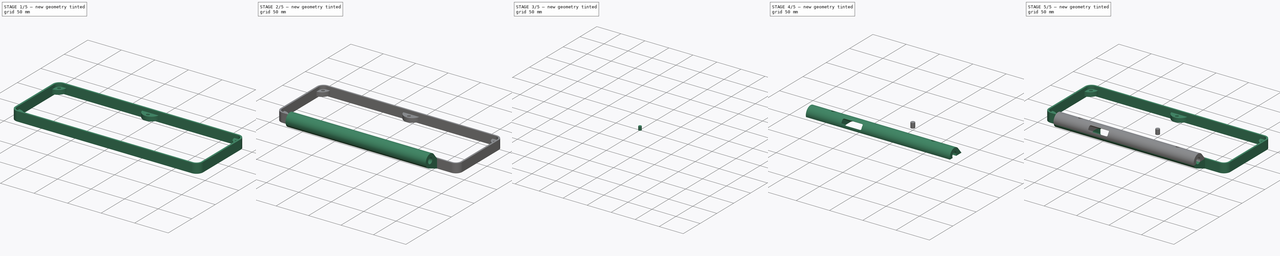
[diagram: build sequence overview — one tinted view per stage of 5, left to right]
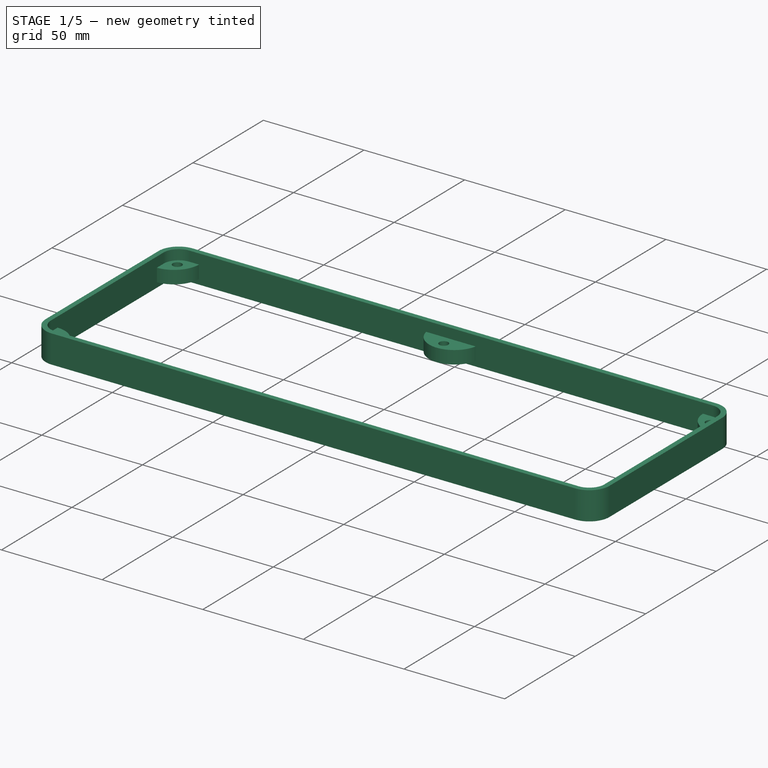
[diagram: stage 1 of 5 — iso view after this stage's code; geometry added in this stage tinted green]
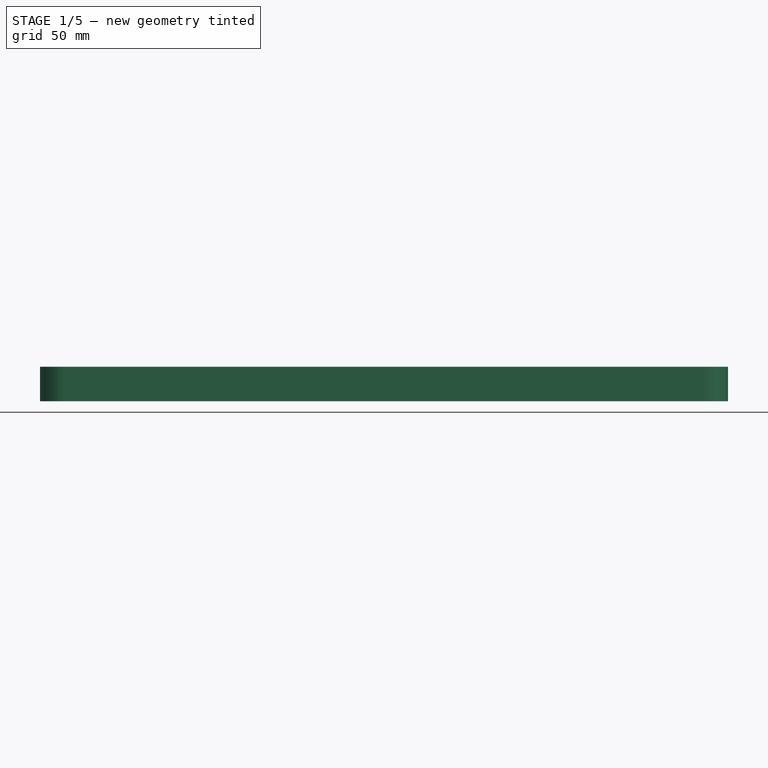
[diagram: stage 1 of 5 — front view after this stage's code; geometry added in this stage tinted green]
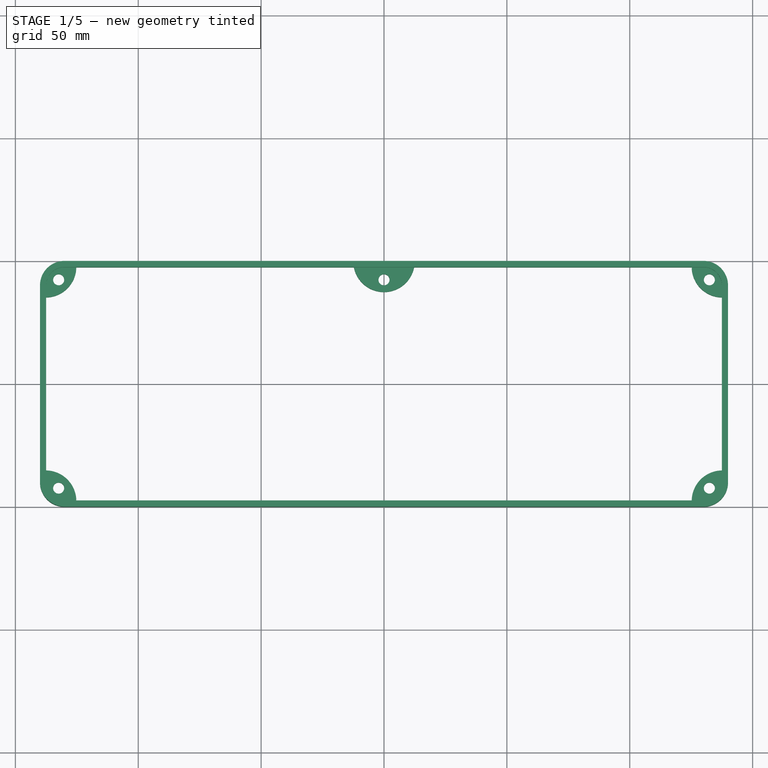
[diagram: stage 1 of 5 — top view after this stage's code; geometry added in this stage tinted green]
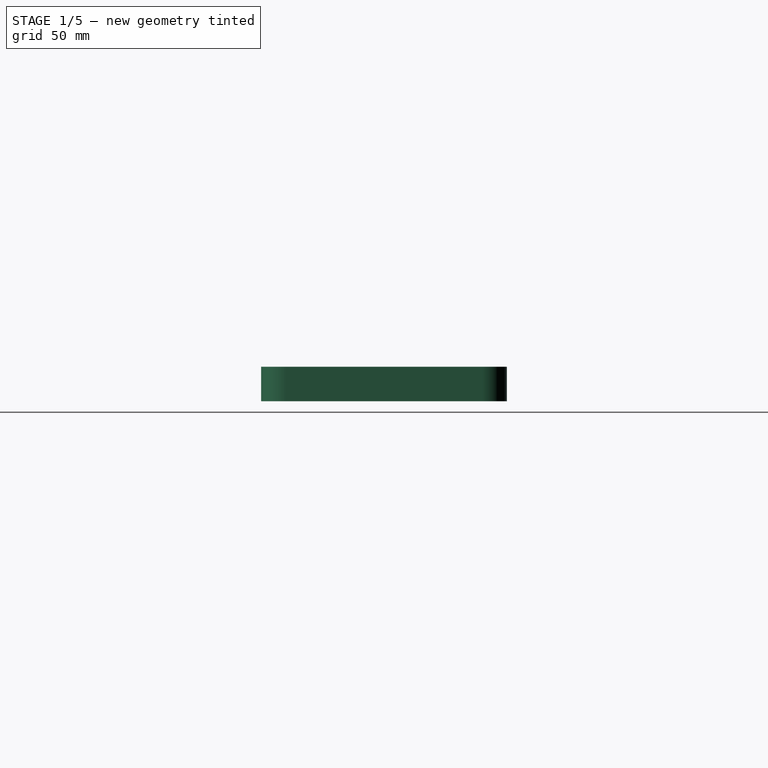
[diagram: stage 1 of 5 — right view after this stage's code; geometry added in this stage tinted green]
FCSTD DOCUMENT  (FreeCAD 1.0R39319 (Git))
Label: TopEnclosureShell
License: All rights reserved
LicenseURL: https://en.wikipedia.org/wiki/All_rights_reserved
objects: PartDesign::SubShapeBinder×20, Sketcher::SketchObject×9, PartDesign::Mirrored×8, PartDesign::Body×8, PartDesign::Pocket×6, PartDesign::Pad×5, PartDesign::Boolean×5, PartDesign::Hole×4, Part::FeaturePython×3, App::Link×2, PartDesign::MultiTransform×1, Part::Extrusion×1, App::DocumentObjectGroup×1, App::VarSet×1
note: 123 computed .brp shape members not serialized (recipe doc carries the construction recipe); baked Part::Feature solids carry a one-line shape summary decoded from their .brp
EXTERNAL_REF file=Spec.FCStd obj=Spreadsheet
EXTERNAL_REF file=TopEnclosure.FCStd obj=Sketch

FEATURE [App::Link] Link  label="Vars"
  LinkedObject = -> <external Spec.FCStd>#Spreadsheet
FEATURE [App::Link] Link001  label="MasterSketch"
  LinkedObject = -> <external TopEnclosure.FCStd>#Sketch
FEATURE [PartDesign::SubShapeBinder] Binder
  BindCopyOnChange = 0
  BindMode = 0
  ClaimChildren = false
  Context = -> Body [Binder.]
  Fuse = false
  MakeFace = true
  OffsetFill = false
  OffsetIntersection = false
  OffsetJoinType = 0
  OffsetOpenResult = false
  PartialLoad = false
  Refine = true
  Relative = true
  Support = -> [Link001[Edge17,Edge1,Edge2,Edge18,Edge3,Edge19,Edge20,Edge4]]
  _Version = 2
FEATURE [PartDesign::Pad] Pad
  Direction = (0,0,1)
  Length = 14
  Length2 = 10
  Profile = -> Binder
  Refine = true
  Suppressed = false
  Type = 0
  expr: Length = <<Vars>>.top_enclosure_depth
FEATURE [PartDesign::SubShapeBinder] Binder001
  BindCopyOnChange = 0
  BindMode = 0
  ClaimChildren = false
  Context = -> Body [Binder001.]
  Fuse = false
  MakeFace = true
  OffsetFill = false
  OffsetIntersection = false
  OffsetJoinType = 0
  OffsetOpenResult = false
  PartialLoad = false
  Refine = true
  Relative = true
  Support = -> [Link001[Edge37,Edge39]]
  _Version = 2
FEATURE [Sketcher::SketchObject] Sketch
  ArcFitTolerance = 1e-06
  AttachmentOffset = pos=(0,0,2.5) rot=(0,0,1;0rad)
  AttachmentSupport = -> [XY_Plane]
  ExternalGeometry = -> [Binder001]
  FullyConstrained = true
  MakeInternals = false
  MapMode = 5
  Placement = pos=(0,0,2.5) rot=(0,0,1;0rad)
  expr: .AttachmentOffset.Base.z = <<LocalVars>>.bottom_offset
  sketch-geometry (4):
    g0: ArcOfCircle CenterX=-137.703 CenterY=47.7033 CenterZ=0 NormalX=0 NormalY=0 NormalZ=1 AngleXU=0 Radius=12.5 StartAngle=4.72865 EndAngle=6.26692
    g1: LineSegment StartX=-137.5 StartY=35.205 StartZ=0 EndX=-137.5 EndY=41.4 EndZ=0
    g2: LineSegment StartX=-125.205 StartY=47.5 StartZ=0 EndX=-131.4 EndY=47.5 EndZ=0
    g3: ArcOfCircle CenterX=-131.4 CenterY=41.4 CenterZ=0 NormalX=0 NormalY=0 NormalZ=1 AngleXU=0 Radius=6.1 StartAngle=1.5708 EndAngle=3.14159
  constraints (10):
    c: Coincident(g0,g-4)
    c: PointOnObject(g0,g-4)
    c: Horizontal(g-3,g0)
    c: Vertical(g-3,g0)
    c: Coincident(g1,g0)
    c: Coincident(g1,g-3)
    c: Coincident(g2,g0)
    c: Coincident(g2,g-3)
    c: Coincident(g3,g1)
    c: Tangent(g3,g2) = -1.5708
FEATURE [PartDesign::SubShapeBinder] Binder002
  BindCopyOnChange = 0
  BindMode = 0
  ClaimChildren = false
  Context = -> Body [Binder002.]
  Fuse = false
  MakeFace = true
  OffsetFill = false
  OffsetIntersection = false
  OffsetJoinType = 0
  OffsetOpenResult = false
  PartialLoad = false
  Refine = true
  Relative = true
  Support = -> [Link001[Edge38,Edge40]]
  _Version = 2
FEATURE [PartDesign::Pad] Pad001
  BaseFeature = -> Pad
  Direction = (0,0,1)
  Length = 6.5
  Length2 = 10
  Profile = -> Sketch
  ReferenceAxis = -> Sketch [N_Axis]
  Refine = true
  Suppressed = false
  Type = 0
  expr: Length = <<LocalVars>>.internal_depth
FEATURE [PartDesign::SubShapeBinder] Binder003
  BindCopyOnChange = 0
  BindMode = 0
  ClaimChildren = false
  Context = -> Body [Binder003.]
  Fuse = false
  MakeFace = true
  OffsetFill = false
  OffsetIntersection = false
  OffsetJoinType = 0
  OffsetOpenResult = false
  PartialLoad = false
  Refine = true
  Relative = true
  Support = -> [Binder001[Edge2]]
  _Version = 2
FEATURE [PartDesign::Hole] Hole
  BaseFeature = -> Pad001
  CustomThreadClearance = 0
  Depth = 25
  DepthType = 0
  Diameter = 4.5
  DrillForDepth = false
  DrillPoint = 1
  DrillPointAngle = 118
  HoleCutCountersinkAngle = 90
  HoleCutCustomValues = false
  HoleCutDepth = 0
  HoleCutDiameter = 6.1
  HoleCutType = 0
  ModelThread = false
  Profile = -> Binder003
  Refine = true
  Reversed = true
  Suppressed = false
  Tapered = false
  TaperedAngle = 90
  ThreadClass = 0
  ThreadDepth = 25
  ThreadDepthType = 0
  ThreadDirection = 0
  ThreadFit = 0
  ThreadSize = 0
  ThreadType = 0
  Threaded = false
  UseCustomThreadClearance = false
  expr: Diameter = <<Vars>>.nut_inserts_m3
FEATURE [PartDesign::Mirrored] Mirrored
  MirrorPlane = -> YZ_Plane
  Refine = true
  Suppressed = false
  TransformMode = 0
FEATURE [PartDesign::Mirrored] Mirrored001
  MirrorPlane = -> XZ_Plane
  Refine = true
  Suppressed = false
  TransformMode = 0
FEATURE [PartDesign::MultiTransform] MultiTransform
  BaseFeature = -> Hole
  Originals = -> [Pad001,Hole]
  Refine = true
  Suppressed = false
  TransformMode = 0
  Transformations = -> [Mirrored,Mirrored001]
FEATURE [Sketcher::SketchObject] Sketch001
  ArcFitTolerance = 1e-06
  AttachmentOffset = pos=(0,0,2.5) rot=(0,0,1;0rad)
  AttachmentSupport = -> [XY_Plane]
  ExternalGeometry = -> [Binder002]
  FullyConstrained = true
  MakeInternals = false
  MapMode = 5
  Placement = pos=(0,0,2.5) rot=(0,0,1;0rad)
  expr: .AttachmentOffset.Base.z = <<LocalVars>>.bottom_offset
  sketch-geometry (2):
    g0: ArcOfCircle CenterX=0 CenterY=49.9 CenterZ=0 NormalX=0 NormalY=0 NormalZ=1 AngleXU=0 Radius=12.5 StartAngle=3.33479 EndAngle=6.08999
    g1: LineSegment StartX=-12.2674 StartY=47.5 StartZ=0 EndX=12.2674 EndY=47.5 EndZ=0
  constraints (6):
    c: Coincident(g0,g-3)
    c: PointOnObject(g0,g-3)
    c: Horizontal(g1)
    c: PointOnObject(g1,g-4)
    c: Coincident(g1,g0)
    c: Coincident(g1,g0)
FEATURE [PartDesign::Pad] Pad002
  BaseFeature = -> MultiTransform
  Direction = (0,0,1)
  Length = 6.5
  Length2 = 10
  Profile = -> Sketch001
  ReferenceAxis = -> Sketch001 [N_Axis]
  Refine = true
  Suppressed = false
  Type = 0
  expr: Length = <<LocalVars>>.internal_depth
FEATURE [PartDesign::SubShapeBinder] Binder004
  BindCopyOnChange = 0
  BindMode = 0
  ClaimChildren = false
  Context = -> Body [Binder004.]
  Fuse = false
  MakeFace = true
  OffsetFill = false
  OffsetIntersection = false
  OffsetJoinType = 0
  OffsetOpenResult = false
  PartialLoad = false
  Refine = true
  Relative = true
  Support = -> [Binder002[Edge2]]
  _Version = 2
FEATURE [PartDesign::Hole] Hole001
  BaseFeature = -> Pad002
  CustomThreadClearance = 0
  Depth = 25
  DepthType = 0
  Diameter = 4.5
  DrillForDepth = false
  DrillPoint = 1
  DrillPointAngle = 118
  HoleCutCountersinkAngle = 90
  HoleCutCustomValues = false
  HoleCutDepth = 0
  HoleCutDiameter = 6.1
  HoleCutType = 0
  ModelThread = false
  Profile = -> Binder004
  Refine = true
  Reversed = true
  Suppressed = false
  Tapered = false
  TaperedAngle = 90
  ThreadClass = 0
  ThreadDepth = 25
  ThreadDepthType = 0
  ThreadDirection = 0
  ThreadFit = 0
  ThreadSize = 0
  ThreadType = 0
  Threaded = false
  UseCustomThreadClearance = false
  expr: Diameter = <<Vars>>.nut_inserts_m3
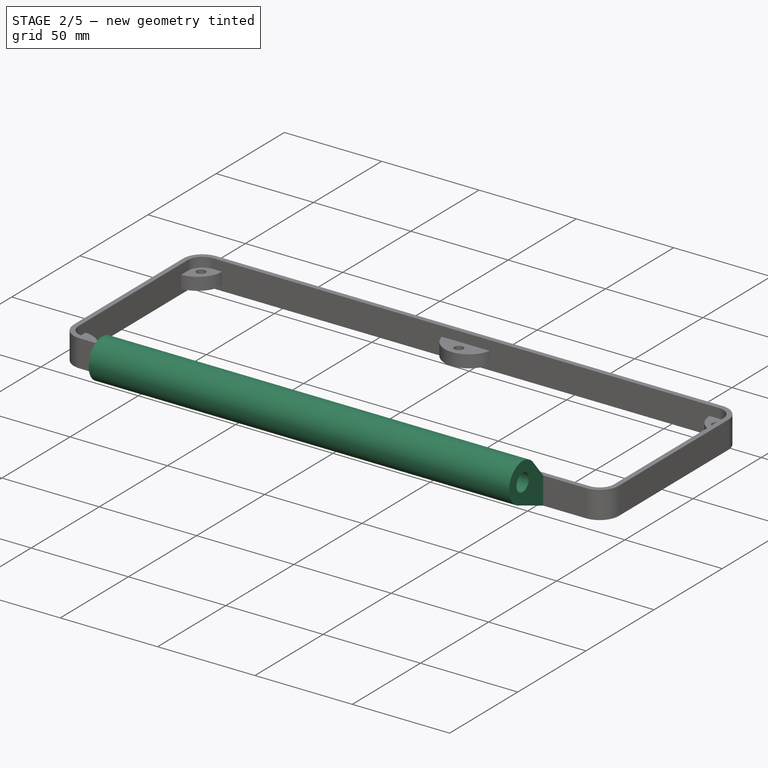
[diagram: stage 2 of 5 — iso view after this stage's code; geometry added in this stage tinted green]
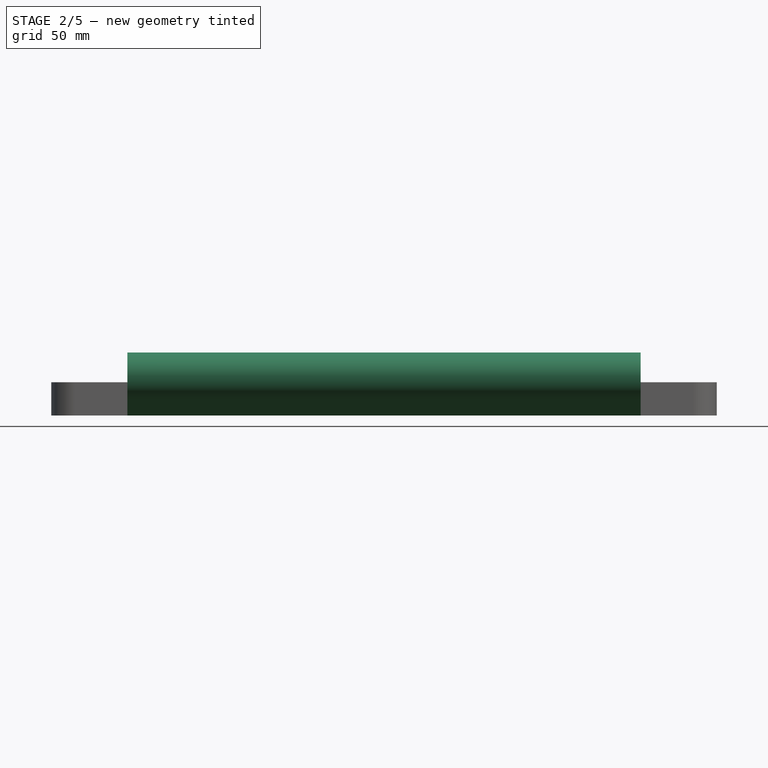
[diagram: stage 2 of 5 — front view after this stage's code; geometry added in this stage tinted green]
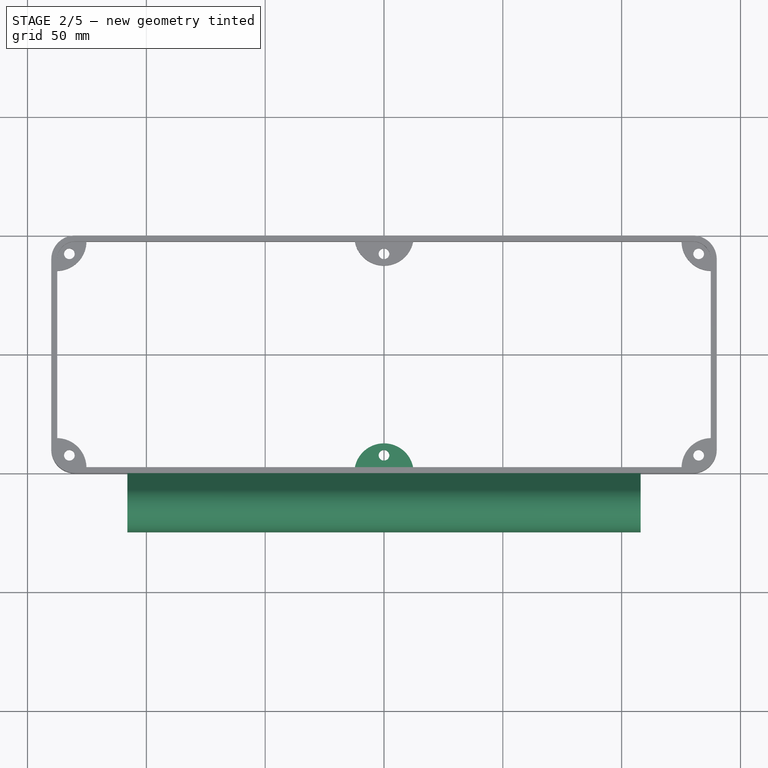
[diagram: stage 2 of 5 — top view after this stage's code; geometry added in this stage tinted green]
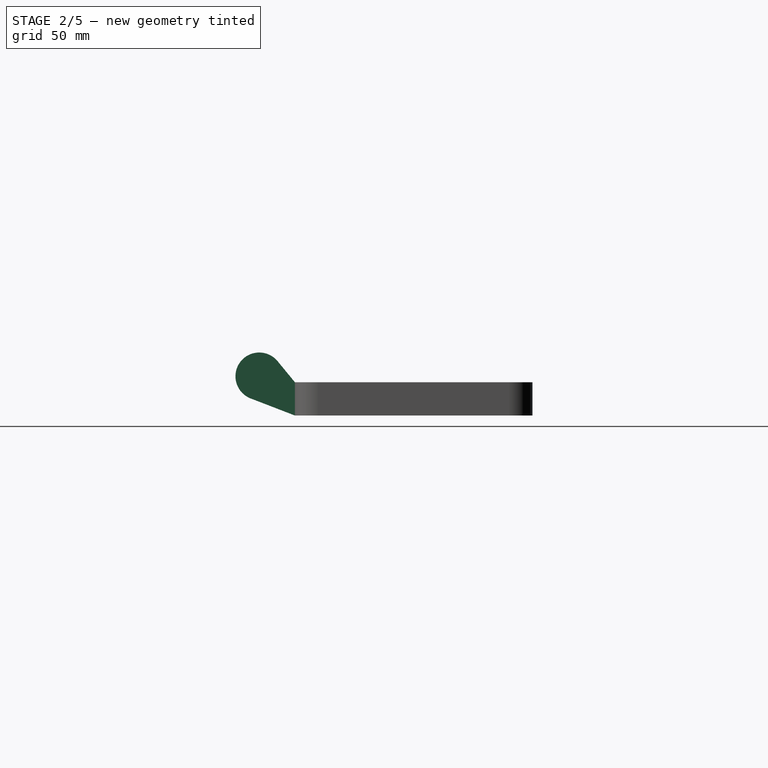
[diagram: stage 2 of 5 — right view after this stage's code; geometry added in this stage tinted green]
FEATURE [PartDesign::Mirrored] Mirrored002
  BaseFeature = -> Hole001
  MirrorPlane = -> XZ_Plane
  Originals = -> [Pad002,Hole001]
  Refine = true
  Suppressed = false
  TransformMode = 0
FEATURE [PartDesign::Body] Body  label="Top Enclosure Shell - Base"
  AllowCompound = false
  Group = -> [Binder,Pad,Sketch,Binder001,Binder002,Pad001,Binder003,Hole,MultiTransform,Mirrored,Mirrored001,Sketch001,Pad002,Binder004,Hole001,Mirrored002]
  Origin = -> Origin
  Tip = -> Mirrored002
FEATURE [PartDesign::SubShapeBinder] Binder005
  BindCopyOnChange = 0
  BindMode = 0
  ClaimChildren = false
  Context = -> Body001 [Binder005.]
  Fuse = false
  MakeFace = true
  OffsetFill = false
  OffsetIntersection = false
  OffsetJoinType = 0
  OffsetOpenResult = false
  PartialLoad = false
  Refine = true
  Relative = true
  Support = -> [Body]
  _Version = 2
FEATURE [PartDesign::Boolean] Boolean
  Group = -> [Binder005]
  Refine = true
  Suppressed = false
  Type = 0
  UsePlacement = true
FEATURE [Sketcher::SketchObject] Sketch002
  ArcFitTolerance = 1e-06
  AttachmentSupport = -> [YZ_Plane001]
  FullyConstrained = true
  MakeInternals = false
  MapMode = 5
  Placement = pos=(0,0,0) rot=(0.57735,0.57735,0.57735;2.0944rad)
  expr: Constraints[2] = <<Vars>>.top_enclosure_height / 2
  expr: Constraints[3] = <<Vars>>.top_enclosure_depth
  sketch-geometry (12):
    g0: LineSegment StartX=-50 StartY=0 StartZ=0 EndX=-50 EndY=14 EndZ=0
    g1: LineSegment StartX=-50 StartY=14 StartZ=0 EndX=-57.275 EndY=22.8501 EndZ=0
    g2: LineSegment StartX=-50 StartY=0 StartZ=0 EndX=-68.5971 EndY=7.16934 EndZ=0
    g3: Circle CenterX=-65 CenterY=16.5 CenterZ=0 NormalX=0 NormalY=0 NormalZ=1 AngleXU=0 Radius=4.5
    g4: ArcOfCircle CenterX=-65 CenterY=16.5 CenterZ=0 NormalX=0 NormalY=0 NormalZ=1 AngleXU=0 Radius=10 StartAngle=0.688024 EndAngle=4.34444
    g5: LineSegment StartX=-65 StartY=22.85 StartZ=0 EndX=-70.4993 EndY=19.675 EndZ=0
    g6: LineSegment StartX=-70.4993 StartY=19.675 StartZ=0 EndX=-70.4993 EndY=13.325 EndZ=0
    g7: LineSegment StartX=-70.4993 StartY=13.325 StartZ=0 EndX=-65 EndY=10.15 EndZ=0
    g8: LineSegment StartX=-65 StartY=10.15 StartZ=0 EndX=-59.5007 EndY=13.325 EndZ=0
    g9: LineSegment StartX=-59.5007 StartY=13.325 StartZ=0 EndX=-59.5007 EndY=19.675 EndZ=0
    g10: LineSegment StartX=-59.5007 StartY=19.675 StartZ=0 EndX=-65 EndY=22.85 EndZ=0
    g11: Circle [constr] CenterX=-65 CenterY=16.5 CenterZ=0 NormalX=0 NormalY=0 NormalZ=1 AngleXU=0 Radius=6.35
  constraints (29):
    c: PointOnObject(g0,g-1)
    c: Vertical(g0)
    c: DistanceX(g0,g-1) = 50
    c: DistanceY(g0,g0) = 14
    c: Coincident(g1,g0)
    c: Coincident(g2,g0)
    c: Coincident(g4,g3)
    c: Tangent(g1,g4) = -1.5708
    c: Tangent(g2,g4) = 1.5708
    c: Diameter(g4) = 20
    c: DistanceX(g3,g0) = 15
    c: DistanceY(g0,g3) = 2.5
    c: Diameter(g3) = 9
    c: Coincident(g5,g6)
    c: Coincident(g6,g7)
    c: Coincident(g7,g8)
    c: Coincident(g8,g9)
    c: Coincident(g9,g10)
    c: Coincident(g10,g5)
    c: Equal(g5, g6-g10) x5
    c: PointOnObject(g5,g11)
    c: PointOnObject(g6,g11)
    c: PointOnObject(g7,g11)
    c: PointOnObject(g8,g11)
    c: PointOnObject(g9,g11)
    c: PointOnObject(g10,g11)
    c: Coincident(g11,g3)
    c: Vertical(g5,g3)
    c: DistanceY(g6,g6) = 6.35
FEATURE [PartDesign::SubShapeBinder] Binder006
  BindCopyOnChange = 0
  BindMode = 0
  ClaimChildren = false
  Context = -> Body001 [Binder006.]
  Fuse = false
  MakeFace = true
  OffsetFill = false
  OffsetIntersection = false
  OffsetJoinType = 0
  OffsetOpenResult = false
  PartialLoad = false
  Refine = true
  Relative = true
  Support = -> [Sketch002[Edge2,Edge3,Edge4,Edge1]]
  _Version = 2
FEATURE [PartDesign::Pad] Pad003
  BaseFeature = -> Boolean
  Direction = (1,0,0)
  Length = 216
  Length2 = 10
  Midplane = true
  Profile = -> Binder006
  Refine = true
  Suppressed = false
  Type = 0
  expr: Length = <<Vars>>.top_enclosure_width - 32 * 2
FEATURE [PartDesign::SubShapeBinder] Binder007
  BindCopyOnChange = 0
  BindMode = 0
  ClaimChildren = false
  Context = -> Body001 [Binder007.]
  Fuse = false
  MakeFace = true
  OffsetFill = false
  OffsetIntersection = false
  OffsetJoinType = 0
  OffsetOpenResult = false
  PartialLoad = false
  Placement = pos=(99,0,0) rot=(0,0,1;0rad)
  Refine = true
  Relative = true
  Support = -> [Sketch002[Edge5]]
  _Version = 2
  expr: .Placement.Base.x = <<Vars>>.top_enclosure_width / 2 - 32 - 9
FEATURE [PartDesign::SubShapeBinder] Binder008
  BindCopyOnChange = 0
  BindMode = 0
  ClaimChildren = false
  Context = -> Body001 [Binder008.]
  Fuse = false
  MakeFace = true
  OffsetFill = false
  OffsetIntersection = false
  OffsetJoinType = 0
  OffsetOpenResult = false
  PartialLoad = false
  Placement = pos=(99,0,0) rot=(0,0,1;0rad)
  Refine = true
  Relative = true
  Support = -> [Sketch002[Edge6,Edge11,Edge10,Edge9,Edge8,Edge7]]
  _Version = 2
  expr: .Placement.Base.x = <<Vars>>.top_enclosure_width / 2 - 32 - 9
FEATURE [PartDesign::Pocket] Pocket
  BaseFeature = -> Pad003
  Direction = (-1,0,0)
  Length = 5
  Length2 = 5
  Profile = -> Binder007
  Refine = true
  Reversed = true
  Suppressed = false
  Type = 1
FEATURE [PartDesign::Pocket] Pocket001
  BaseFeature = -> Pocket
  Direction = (-1,0,0)
  Length = 9
  Length2 = 5
  Profile = -> Binder008
  Refine = true
  Suppressed = false
  Type = 0
FEATURE [PartDesign::Mirrored] Mirrored003
  BaseFeature = -> Pocket001
  MirrorPlane = -> YZ_Plane001
  Originals = -> [Pocket,Pocket001]
  Refine = true
  Suppressed = false
  TransformMode = 0
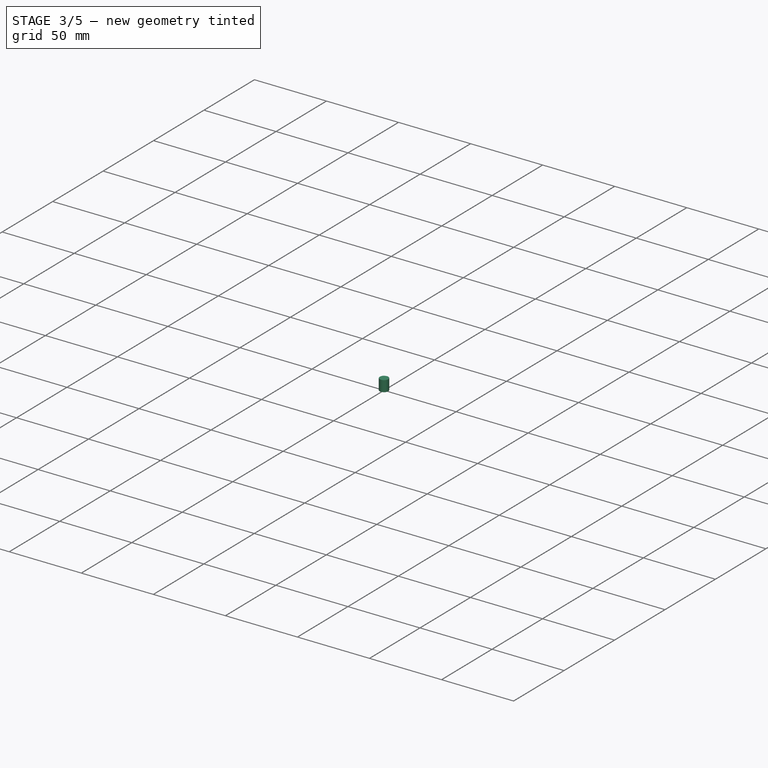
[diagram: stage 3 of 5 — iso view after this stage's code; geometry added in this stage tinted green]
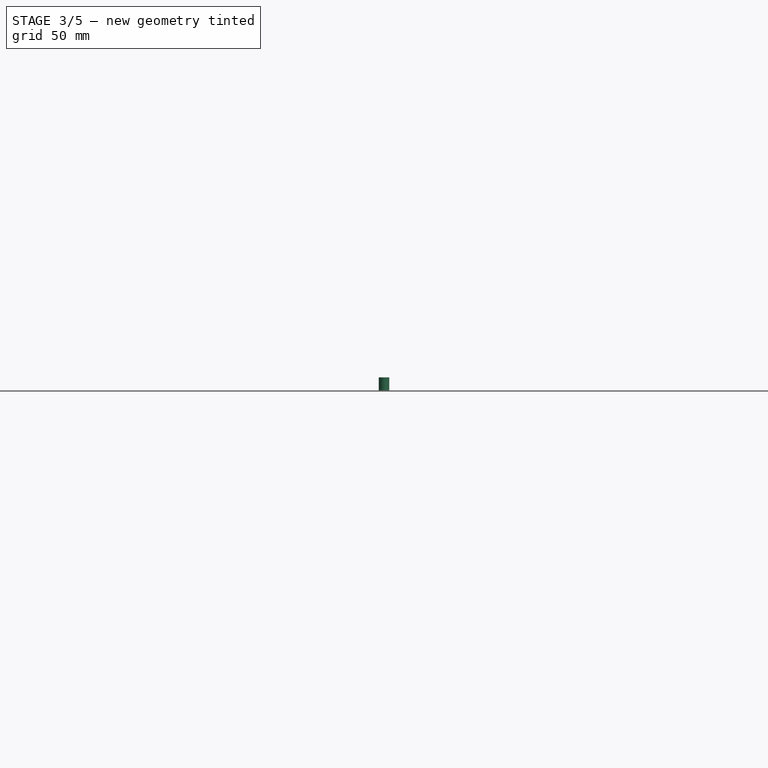
[diagram: stage 3 of 5 — front view after this stage's code; geometry added in this stage tinted green]
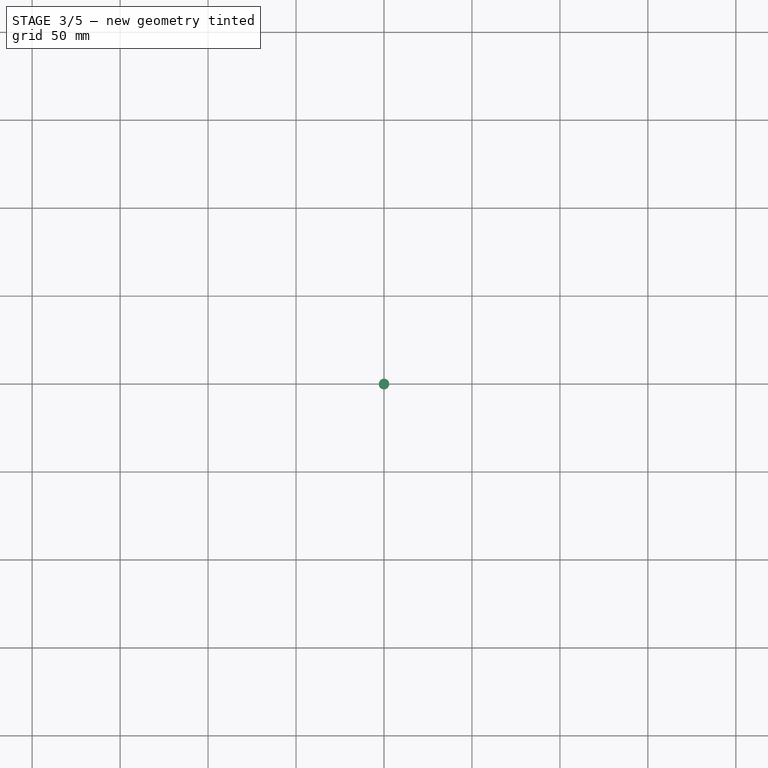
[diagram: stage 3 of 5 — top view after this stage's code; geometry added in this stage tinted green]
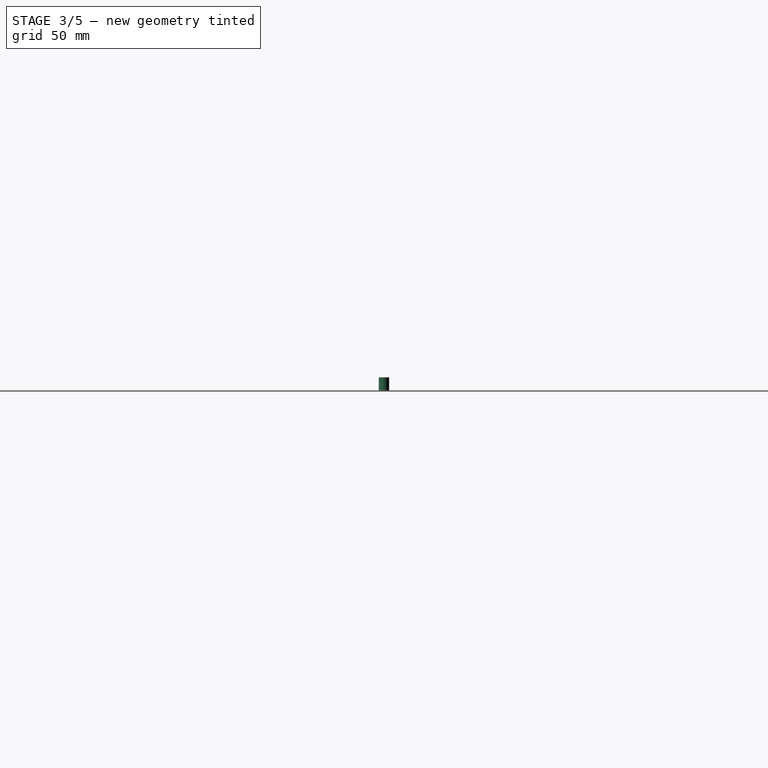
[diagram: stage 3 of 5 — right view after this stage's code; geometry added in this stage tinted green]
FEATURE [PartDesign::Body] Body001  label="Top Enclosure Shell - 1"
  AllowCompound = false
  Group = -> [Boolean,Sketch002,Binder006,Pad003,Binder007,Binder008,Pocket,Pocket001,Mirrored003]
  Origin = -> Origin001
  Tip = -> Mirrored003
FEATURE [PartDesign::SubShapeBinder] Binder009
  BindCopyOnChange = 0
  BindMode = 0
  ClaimChildren = false
  Context = -> Body002 [Binder009.]
  Fuse = false
  MakeFace = true
  OffsetFill = false
  OffsetIntersection = false
  OffsetJoinType = 0
  OffsetOpenResult = false
  PartialLoad = false
  Refine = true
  Relative = true
  Support = -> [Body001]
  _Version = 2
FEATURE [PartDesign::Boolean] Boolean001
  Group = -> [Binder009]
  Refine = true
  Suppressed = false
  Type = 0
  UsePlacement = true
FEATURE [Sketcher::SketchObject] Sketch003
  ArcFitTolerance = 1e-06
  AttachmentSupport = -> [Boolean001]
  ExternalGeometry = -> [Boolean001]
  FullyConstrained = false
  MakeInternals = false
  MapMode = 5
  Placement = pos=(0,-47.5,0) rot=(0,0.707107,0.707107;3.14159rad)
  expr: Constraints[26] = <<Vars>>.wire_hole_offset_x
  expr: Constraints[28] = <<Vars>>.wire_hole_height
  expr: Constraints[4] = <<Vars>>.wire_hole_width
  sketch-geometry (13):
    g0: LineSegment StartX=25 StartY=9.5 StartZ=0 EndX=25 EndY=4.5 EndZ=0
    g1: LineSegment StartX=27 StartY=2.5 StartZ=0 EndX=53 EndY=2.5 EndZ=0
    g2: LineSegment StartX=55 StartY=4.5 StartZ=0 EndX=55 EndY=9.5 EndZ=0
    g3: LineSegment StartX=53 StartY=11.5 StartZ=0 EndX=27 EndY=11.5 EndZ=0
    g4: ArcOfCircle CenterX=27 CenterY=9.5 CenterZ=0 NormalX=0 NormalY=0 NormalZ=1 AngleXU=0 Radius=2 StartAngle=1.5708 EndAngle=3.14159
    g5: GeomPoint [constr] X=25 Y=11.5 Z=0
    g6: ArcOfCircle CenterX=27 CenterY=4.5 CenterZ=0 NormalX=0 NormalY=0 NormalZ=1 AngleXU=0 Radius=2 StartAngle=3.14159 EndAngle=4.71239
    g7: GeomPoint [constr] X=25 Y=2.5 Z=0
    g8: ArcOfCircle CenterX=53 CenterY=4.5 CenterZ=0 NormalX=0 NormalY=0 NormalZ=1 AngleXU=0 Radius=2 StartAngle=4.71239 EndAngle=6.28319
    g9: GeomPoint [constr] X=55 Y=2.5 Z=0
    g10: ArcOfCircle CenterX=53 CenterY=9.5 CenterZ=0 NormalX=0 NormalY=0 NormalZ=1 AngleXU=0 Radius=2 StartAngle=0 EndAngle=1.5708
    g11: GeomPoint [constr] X=55 Y=11.5 Z=0
    g12: GeomPoint X=40 Y=7 Z=0
  constraints (29):
    c: Vertical(g0)
    c: Vertical(g2)
    c: Horizontal(g1)
    c: Horizontal(g3)
    c: DistanceX(g5,g11) = 30
    c: PointOnObject(g5,g0)
    c: PointOnObject(g5,g3)
    c: Tangent(g0,g4) = -1.5708
    c: Tangent(g3,g4) = -1.5708
    c: PointOnObject(g7,g0)
    c: PointOnObject(g7,g1)
    c: Tangent(g0,g6) = -1.5708
    c: Tangent(g1,g6) = -1.5708
    c: PointOnObject(g9,g1)
    c: PointOnObject(g9,g2)
    c: Tangent(g1,g8) = -1.5708
    c: Tangent(g2,g8) = -1.5708
    c: PointOnObject(g11,g2)
    c: PointOnObject(g11,g3)
    c: Tangent(g2,g10) = -1.5708
    c: Tangent(g3,g10) = -1.5708
    c: Equal(g8,g10)
    c: Equal(g10,g4)
    c: Equal(g4,g6)
    c: Radius(g6) = 2
    c: Symmetric(g7,g11,g12)
    c: DistanceX(g-1,g12) = 40
    c: DistanceY(g-1,g12) = 7
    c: DistanceY(g1,g3) = 9
FEATURE [Sketcher::SketchObject] Sketch004
  ArcFitTolerance = 1e-06
  AttachmentSupport = -> [YZ_Plane002]
  ExternalGeometry = -> [Boolean001]
  FullyConstrained = true
  MakeInternals = false
  MapMode = 5
  Placement = pos=(0,0,0) rot=(0.57735,0.57735,0.57735;2.0944rad)
  sketch-geometry (1):
    g0: LineSegment StartX=-84.641 StartY=27 StartZ=0 EndX=-50 EndY=7 EndZ=0
  constraints (3):
    c: Symmetric(g-4,g-4,g0)
    c: Distance(g0) = 40
    c: Angle(g0,g-1) = 0.523599
FEATURE [PartDesign::Pocket] Pocket002
  BaseFeature = -> Boolean001
  Direction = (0,-0.866025,0.5)
  Length = 5
  Length2 = 5
  Profile = -> Sketch003
  ReferenceAxis = -> Sketch004 [Edge1]
  Refine = true
  Suppressed = false
  Type = 1
FEATURE [PartDesign::Body] Body002  label="Top Enclosure Shell - 2"
  AllowCompound = false
  Group = -> [Boolean001,Sketch003,Sketch004,Pocket002]
  Origin = -> Origin002
  Tip = -> Pocket002
FEATURE [PartDesign::SubShapeBinder] Binder010
  BindCopyOnChange = 0
  BindMode = 0
  ClaimChildren = false
  Context = -> Body003 [Binder010.]
  Fuse = false
  MakeFace = true
  OffsetFill = false
  OffsetIntersection = false
  OffsetJoinType = 0
  OffsetOpenResult = false
  PartialLoad = false
  Refine = true
  Relative = true
  Support = -> [Body002]
  _Version = 2
FEATURE [PartDesign::Boolean] Boolean002
  Group = -> [Binder010]
  Refine = true
  Suppressed = false
  Type = 0
  UsePlacement = true
FEATURE [Sketcher::SketchObject] Sketch005
  ArcFitTolerance = 1e-06
  AttachmentSupport = -> [YZ_Plane003]
  FullyConstrained = true
  MakeInternals = false
  MapMode = 5
  Placement = pos=(0,0,0) rot=(0.57735,0.57735,0.57735;2.0944rad)
  expr: Constraints[1] = <<Vars>>.top_enclosure_depth
  expr: Constraints[2] = <<Vars>>.top_enclosure_height / 2 - 10
  sketch-geometry (1):
    g0: LineSegment StartX=-90 StartY=14 StartZ=0 EndX=-40 EndY=14 EndZ=0
  constraints (4):
    c: Horizontal(g0)
    c: DistanceY(g-1,g0) = 14
    c: DistanceX(g0,g-1) = 40
    c: DistanceX(g0,g0) = 50
FEATURE [PartDesign::Body] Body003  label="Top Enclosure Shell Split"
  AllowCompound = false
  Group = -> [Boolean002,Sketch005]
  Origin = -> Origin003
  Tip = -> Boolean002
FEATURE [Part::Extrusion] Extrude
  Base = -> Sketch005
  Dir = (1,0,0)
  DirMode = 2
  FaceMakerClass = Part::FaceMakerBullseye
  FaceMakerMode = 3
  LengthFwd = 280
  LengthRev = 0
  Solid = false
  Symmetric = true
  expr: LengthFwd = <<Vars>>.top_enclosure_width
FEATURE [Part::FeaturePython] Slice  # WARN: FeaturePython — macro-defined, semantics opaque (R4)
  Base = -> Body003
  Mode = 1
  Tolerance = 0
  Tools = -> [Extrude]
FEATURE [Part::FeaturePython] Slice_child0  label="Slice.0"  # WARN: FeaturePython — macro-defined, semantics opaque (R4)
  Base = -> Slice
  FilterType = 1
  Invert = false
  OverrideMaxVal = 0
  WindowFrom = 80
  WindowTo = 100
  items = 0
FEATURE [PartDesign::Body] Body005  label="Top Enclosure Shell Part 2"
  AllowCompound = false
  Group = -> [Boolean004,Binder015,Binder016,Hole003,Pocket003,Mirrored005,Binder018,Pocket005,Mirrored007]
  Origin = -> Origin005
  Tip = -> Mirrored007
FEATURE [App::VarSet] VarSet  label="LocalVars"
  bottom_offset = 2.5
  internal_depth = 6.5
  expr: bottom_offset = <<Vars>>.top_enclosure_back_depth
  expr: internal_depth = <<Vars>>.top_enclosure_internal_depth
FEATURE [PartDesign::SubShapeBinder] Binder019
  BindCopyOnChange = 0
  BindMode = 0
  ClaimChildren = false
  Context = -> Body007 [Binder019.]
  Fuse = false
  MakeFace = true
  OffsetFill = false
  OffsetIntersection = false
  OffsetJoinType = 0
  OffsetOpenResult = false
  PartialLoad = false
  Refine = true
  Relative = true
  Support = -> [Body006[Sketch007.Edge1]]
  _Version = 2
FEATURE [Sketcher::SketchObject] Sketch008
  ArcFitTolerance = 1e-06
  AttachmentSupport = -> [XY_Plane007]
  ExternalGeometry = -> [Binder019]
  FullyConstrained = true
  MakeInternals = false
  MapMode = 5
  expr: Constraints[2] = 6 - <<Vars>>.clearance / 2
  sketch-geometry (1):
    g0: Circle CenterX=0 CenterY=0 CenterZ=0 NormalX=0 NormalY=0 NormalZ=1 AngleXU=0 Radius=2.95
  constraints (3):
    c: Coincident(g0,g-1)
    c: Diameter(g-3) = 6
    c: Diameter(g0) = 5.9
FEATURE [PartDesign::Pad] Pad004
  Direction = (0,0,1)
  Length = 7.6
  Length2 = 10
  Profile = -> Sketch008
  ReferenceAxis = -> Sketch008 [N_Axis]
  Refine = true
  Suppressed = false
  Type = 0
  expr: Length = 8 - 2 * <<Vars>>.clearance
FEATURE [PartDesign::Body] Body007  label="Parts Join Helper"
  AllowCompound = false
  Group = -> [Binder019,Sketch008,Pad004]
  Origin = -> Origin007
  Tip = -> Pad004

RESOLVED EXTERNAL PARTS (link-assembly join: the EXTERNAL_REF files above that resolve inside this repo's crawl, each included once):
---- part Spec.FCStd = doc fcstd_a8ec68f4a39c ----
FCSTD DOCUMENT  (FreeCAD 1.0R39319 (Git))
Label: Spec
License: All rights reserved
LicenseURL: https://en.wikipedia.org/wiki/All_rights_reserved
objects: Spreadsheet::Sheet×1

FEATURE [Spreadsheet::Sheet] Spreadsheet  label="Vars"
  cells = A1='Common; A2='clearance; B2(clearance)=0.2; A3='nut_inserts_m2; B3(nut_inserts_m2)=3.5; A4='nut_inserts_m3; B4(nut_inserts_m3)=4.5; A5='wall; B5(wall)=2.5; A6='ext_radius; B6(ext_radius)=10; A7='hood_angle; B7(hood_angle)=4; A12='Display; A13='display_width; B13(display_width)=231.3; A14='display_height; B14(display_height)=64.3; A15='display_depth; B15(display_depth)=5.5; A16='display_offset_bottom; B16(display_offset_bottom)==3 + display_view_offset; C16='display_view_offset; D16(display_view_offset)=1; A17='display_offset_left; B17(display_offset_left)==2.5 + display_view_offset; A18='display_offset_right; B18(display_offset_right)==7.5 + display_view_offset; A19='display_offset_top; B19(display_offset_top)==3 + display_view_offset; F20='b; A21='Top Enclosure; A22='top_enclosure_width; B22(top_enclosure_width)=280; A23='top_enclosure_height; B23(top_enclosure_height)=100; A24='top_enclosure_front_depth; B24(top_enclosure_front_depth)=1; A25='top_enclosure_back_depth; B25(top_enclosure_back_depth)==wall; A26='top_enclosure_display_back_depth; B26(top_enclosure_display_back_depth)=1; A27='top_enclosure_depth; B27(top_enclosure_depth)=14; A28='top_enclosure_internal_depth; B28(top_enclosure_internal_depth)==top_enclosure_depth - top_enclosure_front_depth - display_depth - top_enclosure_display_back_depth - top_enclosure_back_depth + wall; A30='Bottom Enclosure; A31='bottom_enclosure_width; B31(bottom_enclosure_width)==top_enclosure_width; A32='bottom_enclosure_height; B32(bottom_enclosure_height)=160; A33='bottom_enclosure_depth; B33(bottom_enclosure_depth)=30; A35='Keyboard Plate; A36='keyboard_plate_width; B36(keyboard_plate_width)==235 - 2; A37='keyboard_plate_height; B37(keyboard_plate_height)==82.5 - 2; A38='keyboard_plate_radius; B38(kayboard_plate_radius)==ext_radius / 2; A40='Keyboard Plate; A41='wire_hole_offset_x; B41(wire_hole_offset_x)=40; A42='wire_hole_width; B42(wire_hole_width)=30; A43='wire_hole_height; B43(wire_hole_height)=9
---- part TopEnclosure.FCStd = doc fcstd_a96d0c470227 ----
FCSTD DOCUMENT  (FreeCAD 1.0R39319 (Git))
Label: TopEnclosure
License: All rights reserved
LicenseURL: https://en.wikipedia.org/wiki/All_rights_reserved
objects: App::Link×1, Sketcher::SketchObject×1
note: 2 computed .brp shape members not serialized (recipe doc carries the construction recipe); baked Part::Feature solids carry a one-line shape summary decoded from their .brp
EXTERNAL_REF file=Spec.FCStd obj=Spreadsheet

FEATURE [App::Link] Link  label="Vars"
  LinkedObject = -> <external Spec.FCStd>#Spreadsheet
FEATURE [Sketcher::SketchObject] Sketch  label="MasterSketch"
  ArcFitTolerance = 1e-06
  FullyConstrained = true
  MakeInternals = false
  expr: Constraints[100] = <<Vars>>.display_offset_left
  expr: Constraints[101] = <<Vars>>.display_offset_right
  expr: Constraints[102] = <<Vars>>.display_offset_bottom
  expr: Constraints[150] = <<Vars>>.ext_radius
  expr: Constraints[64] = <<Vars>>.wall
  expr: Constraints[65] = <<Vars>>.top_enclosure_height
  expr: Constraints[66] = <<Vars>>.top_enclosure_width
  expr: Constraints[67] = <<Vars>>.clearance / 2
  expr: Constraints[96] = <<Vars>>.display_width + <<Vars>>.clearance
  expr: Constraints[97] = <<Vars>>.display_height + <<Vars>>.clearance
  expr: Constraints[99] = <<Vars>>.display_offset_top
  sketch-geometry (62):
    g0: LineSegment StartX=-137.5 StartY=40 StartZ=0 EndX=-137.5 EndY=-40 EndZ=0
    g1: LineSegment StartX=-130 StartY=-47.5 StartZ=0 EndX=130 EndY=-47.5 EndZ=0
    g2: LineSegment StartX=137.5 StartY=-40 StartZ=0 EndX=137.5 EndY=40 EndZ=0
    g3: LineSegment StartX=130 StartY=47.5 StartZ=0 EndX=-130 EndY=47.5 EndZ=0
    g4: ArcOfCircle CenterX=-130 CenterY=40 CenterZ=0 NormalX=0 NormalY=0 NormalZ=1 AngleXU=0 Radius=7.5 StartAngle=1.5708 EndAngle=3.14159
    g5: ArcOfCircle CenterX=-130 CenterY=-40 CenterZ=0 NormalX=0 NormalY=0 NormalZ=1 AngleXU=0 Radius=7.5 StartAngle=3.14159 EndAngle=4.71239
    g6: ArcOfCircle CenterX=130 CenterY=-40 CenterZ=0 NormalX=0 NormalY=0 NormalZ=1 AngleXU=0 Radius=7.5 StartAngle=4.71239 EndAngle=6.28319
    g7: ArcOfCircle CenterX=130 CenterY=40 CenterZ=0 NormalX=0 NormalY=0 NormalZ=1 AngleXU=0 Radius=7.5 StartAngle=4e-16 EndAngle=1.5708
    g8: GeomPoint [constr] X=-137.5 Y=47.5 Z=0
    g9: GeomPoint [constr] X=137.5 Y=-47.5 Z=0
    g10: LineSegment StartX=-137.4 StartY=40 StartZ=0 EndX=-137.4 EndY=-40 EndZ=0
    g11: LineSegment StartX=-130 StartY=-47.4 StartZ=0 EndX=130 EndY=-47.4 EndZ=0
    g12: LineSegment StartX=137.4 StartY=-40 StartZ=0 EndX=137.4 EndY=40 EndZ=0
    g13: LineSegment StartX=130 StartY=47.4 StartZ=0 EndX=-130 EndY=47.4 EndZ=0
    g14: ArcOfCircle CenterX=-130 CenterY=40 CenterZ=0 NormalX=0 NormalY=0 NormalZ=1 AngleXU=0 Radius=7.4 StartAngle=1.5708 EndAngle=3.14159
    g15: ArcOfCircle CenterX=-130 CenterY=-40 CenterZ=0 NormalX=0 NormalY=0 NormalZ=1 AngleXU=0 Radius=7.4 StartAngle=3.14159 EndAngle=4.71239
    g16: ArcOfCircle CenterX=130 CenterY=-40 CenterZ=0 NormalX=0 NormalY=0 NormalZ=1 AngleXU=0 Radius=7.4 StartAngle=4.71239 EndAngle=6.28319
    g17: ArcOfCircle CenterX=130 CenterY=40 CenterZ=0 NormalX=0 NormalY=0 NormalZ=1 AngleXU=0 Radius=7.4 StartAngle=3e-16 EndAngle=1.5708
    g18: GeomPoint [constr] X=-137.4 Y=47.4 Z=0
    g19: GeomPoint [constr] X=137.4 Y=-47.4 Z=0
    g20: LineSegment StartX=-140 StartY=40 StartZ=0 EndX=-140 EndY=-40 EndZ=0
    g21: LineSegment StartX=-130 StartY=-50 StartZ=0 EndX=130 EndY=-50 EndZ=0
    g22: LineSegment StartX=140 StartY=-40 StartZ=0 EndX=140 EndY=40 EndZ=0
    g23: LineSegment StartX=130 StartY=50 StartZ=0 EndX=-130 EndY=50 EndZ=0
    g24: ArcOfCircle CenterX=-130 CenterY=40 CenterZ=0 NormalX=0 NormalY=0 NormalZ=1 AngleXU=0 Radius=10 StartAngle=1.5708 EndAngle=3.14159
    g25: ArcOfCircle CenterX=-130 CenterY=-40 CenterZ=0 NormalX=0 NormalY=0 NormalZ=1 AngleXU=0 Radius=10 StartAngle=3.14159 EndAngle=4.71239
    g26: ArcOfCircle CenterX=130 CenterY=-40 CenterZ=0 NormalX=0 NormalY=0 NormalZ=1 AngleXU=0 Radius=10 StartAngle=4.71239 EndAngle=6.28319
    g27: ArcOfCircle CenterX=130 CenterY=40 CenterZ=0 NormalX=0 NormalY=0 NormalZ=1 AngleXU=0 Radius=10 StartAngle=0 EndAngle=1.5708
    g28: GeomPoint [constr] X=-140 Y=50 Z=0
    g29: GeomPoint [constr] X=140 Y=-50 Z=0
    g30: LineSegment StartX=-109.75 StartY=24.25 StartZ=0 EndX=-109.75 EndY=-24.25 EndZ=0
    g31: LineSegment StartX=-105.75 StartY=-28.25 StartZ=0 EndX=105.75 EndY=-28.25 EndZ=0
    g32: LineSegment StartX=109.75 StartY=-24.25 StartZ=0 EndX=109.75 EndY=24.25 EndZ=0
    g33: LineSegment StartX=105.75 StartY=28.25 StartZ=0 EndX=-105.75 EndY=28.25 EndZ=0
    g34: ArcOfCircle CenterX=-105.75 CenterY=24.25 CenterZ=0 NormalX=0 NormalY=0 NormalZ=1 AngleXU=0 Radius=4 StartAngle=1.5708 EndAngle=3.14159
    g35: ArcOfCircle CenterX=-105.75 CenterY=-24.25 CenterZ=0 NormalX=0 NormalY=0 NormalZ=1 AngleXU=0 Radius=4 StartAngle=3.14159 EndAngle=4.71239
    g36: ArcOfCircle CenterX=105.75 CenterY=-24.25 CenterZ=0 NormalX=0 NormalY=0 NormalZ=1 AngleXU=0 Radius=4 StartAngle=4.71239 EndAngle=6.28319
    g37: ArcOfCircle CenterX=105.75 CenterY=24.25 CenterZ=0 NormalX=0 NormalY=0 NormalZ=1 AngleXU=0 Radius=4 StartAngle=0 EndAngle=1.5708
    g38: GeomPoint [constr] X=-109.75 Y=28.25 Z=0
    g39: GeomPoint [constr] X=109.75 Y=-28.25 Z=0
    g40: LineSegment StartX=-113.25 StartY=32.25 StartZ=0 EndX=-113.25 EndY=-32.25 EndZ=0
    g41: LineSegment StartX=-113.25 StartY=-32.25 StartZ=0 EndX=118.25 EndY=-32.25 EndZ=0
    g42: LineSegment StartX=118.25 StartY=-32.25 StartZ=0 EndX=118.25 EndY=32.25 EndZ=0
    g43: LineSegment StartX=118.25 StartY=32.25 StartZ=0 EndX=-113.25 EndY=32.25 EndZ=0
    g44: Circle CenterX=-137.703 CenterY=47.7033 CenterZ=0 NormalX=0 NormalY=0 NormalZ=1 AngleXU=0 Radius=12.5
    g45: Circle CenterX=0 CenterY=49.9 CenterZ=0 NormalX=0 NormalY=0 NormalZ=1 AngleXU=0 Radius=12.5
    g46: Circle CenterX=-132.4 CenterY=42.4 CenterZ=0 NormalX=0 NormalY=0 NormalZ=1 AngleXU=0 Radius=1.5
    g47: Circle CenterX=0 CenterY=42.4 CenterZ=0 NormalX=0 NormalY=0 NormalZ=1 AngleXU=0 Radius=1.5
    g48: LineSegment [constr] StartX=0 StartY=42.4 StartZ=0 EndX=0 EndY=37.4 EndZ=0
    g49: LineSegment [constr] StartX=-132.4 StartY=42.4 StartZ=0 EndX=-128.864 EndY=38.8645 EndZ=0
    g50: LineSegment [constr] StartX=-132.4 StartY=42.4 StartZ=0 EndX=-137.703 EndY=47.7033 EndZ=0
    g51: LineSegment StartX=121.25 StartY=26.25 StartZ=0 EndX=121.25 EndY=25.25 EndZ=0
    g52: LineSegment StartX=122.25 StartY=24.25 StartZ=0 EndX=130.25 EndY=24.25 EndZ=0
    g53: LineSegment StartX=131.25 StartY=25.25 StartZ=0 EndX=131.25 EndY=26.25 EndZ=0
    g54: LineSegment StartX=130.25 StartY=27.25 StartZ=0 EndX=122.25 EndY=27.25 EndZ=0
    g55: ArcOfCircle CenterX=122.25 CenterY=26.25 CenterZ=0 NormalX=0 NormalY=0 NormalZ=1 AngleXU=0 Radius=1 StartAngle=1.5708 EndAngle=3.14159
    g56: ArcOfCircle CenterX=122.25 CenterY=25.25 CenterZ=0 NormalX=0 NormalY=0 NormalZ=1 AngleXU=0 Radius=1 StartAngle=3.14159 EndAngle=4.71239
    g57: ArcOfCircle CenterX=130.25 CenterY=25.25 CenterZ=0 NormalX=0 NormalY=0 NormalZ=1 AngleXU=0 Radius=1 StartAngle=4.71239 EndAngle=6.28319
    g58: ArcOfCircle CenterX=130.25 CenterY=26.25 CenterZ=0 NormalX=0 NormalY=0 NormalZ=1 AngleXU=0 Radius=1 StartAngle=1e-16 EndAngle=1.5708
    g59: GeomPoint [constr] X=121.25 Y=27.25 Z=0
    g60: GeomPoint [constr] X=131.25 Y=24.25 Z=0
    g61: LineSegment [constr] StartX=126.25 StartY=32.25 StartZ=0 EndX=126.25 EndY=-32.25 EndZ=0
  constraints (151):
    c: Tangent(g0,g4) = -1.5708
    c: Tangent(g0,g5) = -1.5708
    c: Tangent(g1,g5) = -1.5708
    c: Tangent(g1,g6) = -1.5708
    c: Tangent(g2,g6) = -1.5708
    c: Tangent(g2,g7) = -1.5708
    c: Tangent(g3,g7) = -1.5708
    c: Tangent(g3,g4) = -1.5708
    c: Vertical(g0)
    c: Vertical(g2)
    c: Horizontal(g1)
    c: Horizontal(g3)
    c: Equal(g4,g5)
    c: Equal(g5,g6)
    c: Equal(g6,g7)
    c: PointOnObject(g8,g0)
    c: PointOnObject(g8,g3)
    c: PointOnObject(g9,g1)
    c: PointOnObject(g9,g2)
    c: Tangent(g10,g14) = -1.5708
    c: Tangent(g10,g15) = -1.5708
    c: Tangent(g11,g15) = -1.5708
    c: Tangent(g11,g16) = -1.5708
    c: Tangent(g12,g16) = -1.5708
    c: Tangent(g12,g17) = -1.5708
    c: Tangent(g13,g17) = -1.5708
    c: Tangent(g13,g14) = -1.5708
    c: Vertical(g10)
    c: Vertical(g12)
    c: Horizontal(g11)
    c: Horizontal(g13)
    c: Equal(g14,g15)
    c: Equal(g15,g16)
    c: Equal(g16,g17)
    c: PointOnObject(g18,g10)
    c: PointOnObject(g18,g13)
    c: PointOnObject(g19,g11)
    c: PointOnObject(g19,g12)
    c: Tangent(g20,g24) = -1.5708
    c: Tangent(g20,g25) = -1.5708
    c: Tangent(g21,g25) = -1.5708
    c: Tangent(g21,g26) = -1.5708
    c: Tangent(g22,g26) = -1.5708
    c: Tangent(g22,g27) = -1.5708
    c: Tangent(g23,g27) = -1.5708
    c: Tangent(g23,g24) = -1.5708
    c: Vertical(g20)
    c: Vertical(g22)
    c: Horizontal(g21)
    c: Horizontal(g23)
    c: Equal(g24,g25)
    c: Equal(g25,g26)
    c: Equal(g26,g27)
    c: PointOnObject(g28,g20)
    c: PointOnObject(g28,g23)
    c: PointOnObject(g29,g21)
    c: PointOnObject(g29,g22)
    c: Symmetric(g25,g27,g-1)
    c: Symmetric(g5,g7,g-1)
    c: Symmetric(g15,g17,g-1)
    c: Horizontal(g20,g0)
    c: Horizontal(g0,g10)
    c: Vertical(g13,g3)
    c: Vertical(g3,g23)
    c: DistanceX(g20,g0) = 2.5
    c: DistanceY(g21,g23) = 100
    c: DistanceX(g20,g22) = 280
    c: DistanceY(g13,g3) = 0.1
    c: Tangent(g30,g34) = -1.5708
    c: Tangent(g30,g35) = -1.5708
    c: Tangent(g31,g35) = -1.5708
    c: Tangent(g31,g36) = -1.5708
    c: Tangent(g32,g36) = -1.5708
    c: Tangent(g32,g37) = -1.5708
    c: Tangent(g33,g37) = -1.5708
    c: Tangent(g33,g34) = -1.5708
    c: Vertical(g30)
    c: Vertical(g32)
    c: Horizontal(g31)
    c: Horizontal(g33)
    c: Equal(g34,g35)
    c: Equal(g35,g36)
    c: Equal(g36,g37)
    c: PointOnObject(g38,g30)
    c: PointOnObject(g38,g33)
    c: PointOnObject(g39,g31)
    c: PointOnObject(g39,g32)
    c: Coincident(g40,g41)
    c: Coincident(g41,g42)
    c: Coincident(g42,g43)
    c: Coincident(g43,g40)
    c: Vertical(g40)
    c: Vertical(g42)
    c: Horizontal(g41)
    c: Horizontal(g43)
    c: Symmetric(g35,g37,g-1)
    c: DistanceX(g41,g41) = 231.5
    c: DistanceY(g42,g42) = 64.5
    c: Radius(g34) = 4
    c: DistanceY(g33,g40) = 4
    c: DistanceX(g40,g30) = 3.5
    c: DistanceX(g32,g42) = 8.5
    c: DistanceY(g41,g31) = 4
    c: PointOnObject(g45,g-2)
    c: PointOnObject(g47,g-2)
    c: Equal(g46,g47)
    c: Equal(g45,g44)
    c: Diameter(g45) = 25
    c: Coincident(g48,g47)
    c: PointOnObject(g48,g45)
    c: Vertical(g48)
    c: DistanceY(g48,g48) = 5
    c: Horizontal(g47,g46)
    c: Coincident(g49,g46)
    c: PointOnObject(g49,g44)
    c: Equal(g49,g48)
    c: PointOnObject(g4,g49)
    c: Coincident(g50,g46)
    c: Coincident(g50,g44)
    c: Parallel(g49,g50)
    c: PointOnObject(g28,g50)
    c: DistanceY(g46,g13) = 5
    c: Diameter(g46) = 3
    c: Tangent(g51,g55) = -1.5708
    c: Tangent(g51,g56) = -1.5708
    c: Tangent(g52,g56) = -1.5708
    c: Tangent(g52,g57) = -1.5708
    c: Tangent(g53,g57) = -1.5708
    c: Tangent(g53,g58) = -1.5708
    c: Tangent(g54,g58) = -1.5708
    c: Tangent(g54,g55) = -1.5708
    c: Vertical(g51)
    c: Vertical(g53)
    c: Horizontal(g52)
    c: Horizontal(g54)
    c: Equal(g55,g56)
    c: Equal(g56,g57)
    c: Equal(g57,g58)
    c: PointOnObject(g59,g51)
    c: PointOnObject(g59,g54)
    c: PointOnObject(g60,g52)
    c: PointOnObject(g60,g53)
    c: Radius(g56) = 1
    c: DistanceY(g52,g54) = 3
    c: DistanceX(g51,g53) = 10
    c: Equal(g42,g61)
    c: Horizontal(g42,g61)
    c: DistanceX(g42,g61) = 8
    c: Symmetric(g54,g54,g61)
    c: DistanceY(g54,g42) = 5
    c: Radius(g25) = 10
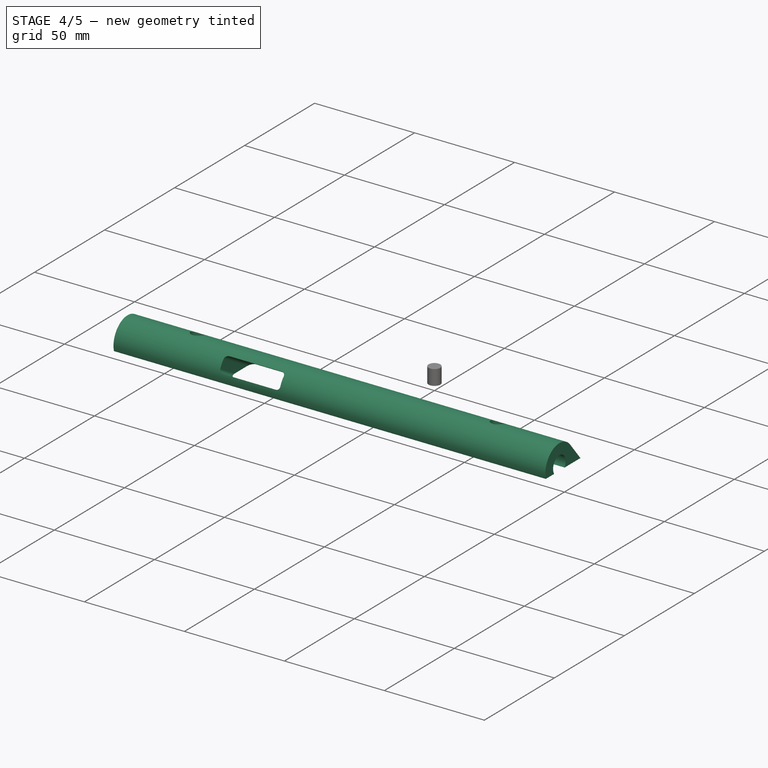
[diagram: stage 4 of 5 — iso view after this stage's code; geometry added in this stage tinted green]
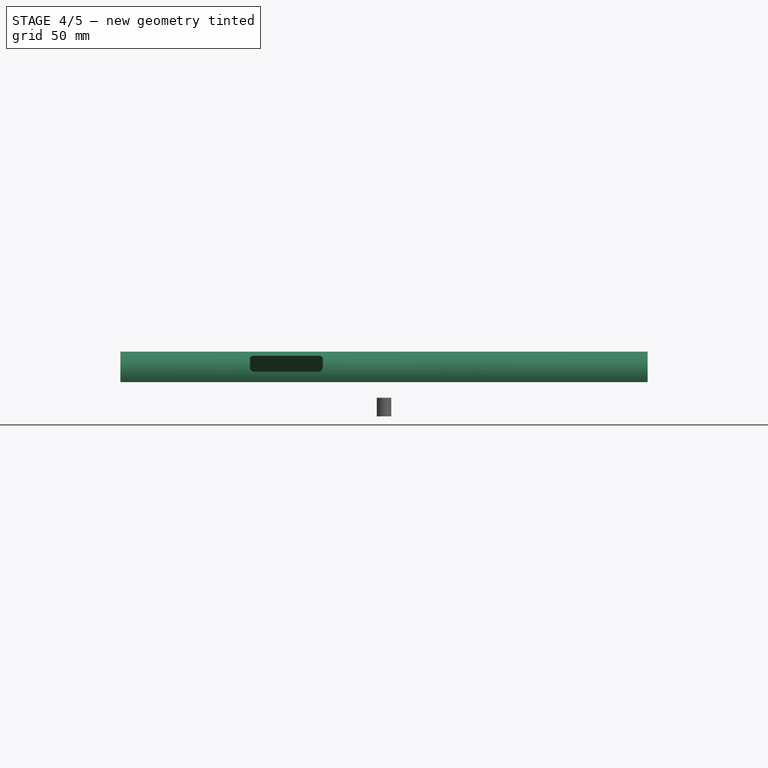
[diagram: stage 4 of 5 — front view after this stage's code; geometry added in this stage tinted green]
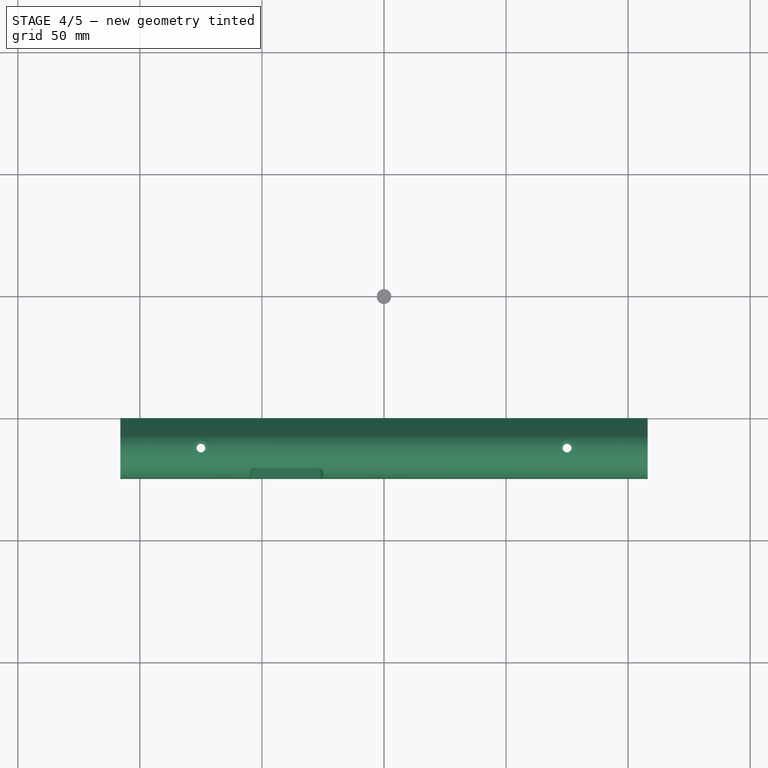
[diagram: stage 4 of 5 — top view after this stage's code; geometry added in this stage tinted green]
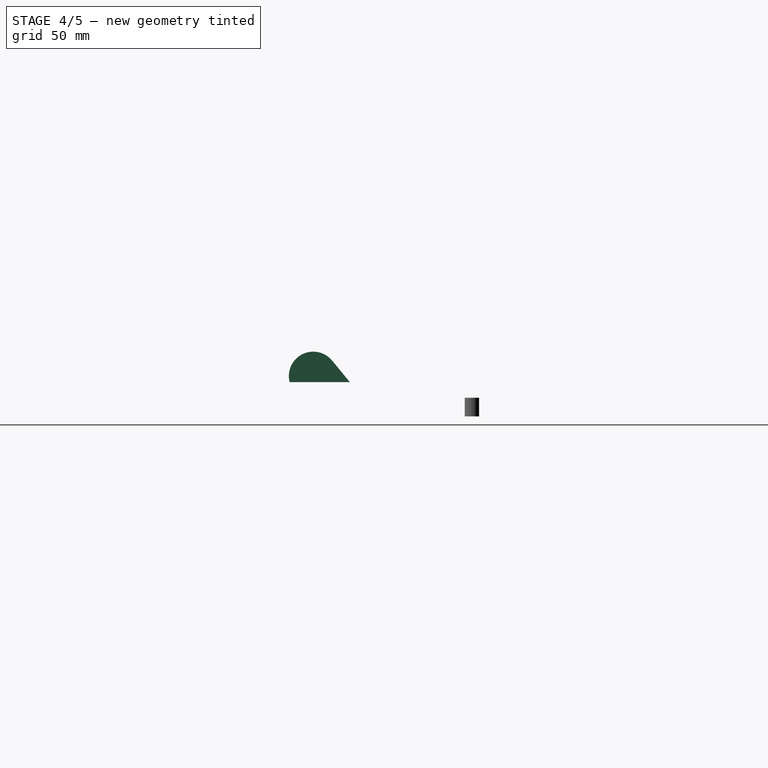
[diagram: stage 4 of 5 — right view after this stage's code; geometry added in this stage tinted green]
FEATURE [Part::FeaturePython] Slice_child1  label="Slice.1"  # WARN: FeaturePython — macro-defined, semantics opaque (R4)
  Base = -> Slice
  FilterType = 1
  Invert = false
  OverrideMaxVal = 0
  WindowFrom = 80
  WindowTo = 100
  items = 1
FEATURE [PartDesign::SubShapeBinder] Binder012
  BindCopyOnChange = 0
  BindMode = 0
  ClaimChildren = false
  Context = -> Body005 [Binder012.]
  Fuse = false
  MakeFace = true
  OffsetFill = false
  OffsetIntersection = false
  OffsetJoinType = 0
  OffsetOpenResult = false
  PartialLoad = false
  Refine = true
  Relative = true
  Support = -> [Slice_child1]
  _Version = 2
FEATURE [PartDesign::Boolean] Boolean004
  Group = -> [Binder012]
  Refine = true
  Suppressed = false
  Type = 0
  UsePlacement = true
FEATURE [PartDesign::SubShapeBinder] Binder015
  BindCopyOnChange = 0
  BindMode = 0
  ClaimChildren = false
  Context = -> Body005 [Binder015.]
  Fuse = false
  MakeFace = true
  OffsetFill = false
  OffsetIntersection = false
  OffsetJoinType = 0
  OffsetOpenResult = false
  PartialLoad = false
  Refine = true
  Relative = true
  Support = -> [Body006[Sketch006.]]
  _Version = 2
FEATURE [PartDesign::SubShapeBinder] Binder016
  BindCopyOnChange = 0
  BindMode = 0
  ClaimChildren = false
  Context = -> Body005 [Binder016.]
  Fuse = false
  MakeFace = true
  Offset = 1.5
  OffsetFill = false
  OffsetIntersection = false
  OffsetJoinType = 0
  OffsetOpenResult = false
  PartialLoad = false
  Placement = pos=(0,0,15) rot=(0,0,1;0rad)
  Refine = true
  Relative = true
  Support = -> [Body006[Sketch006.]]
  _Version = 2
FEATURE [PartDesign::Hole] Hole003
  BaseFeature = -> Boolean004
  CustomThreadClearance = 0
  Depth = 25
  DepthType = 0
  Diameter = 3.6
  DrillForDepth = false
  DrillPoint = 1
  DrillPointAngle = 118
  HoleCutCountersinkAngle = 90
  HoleCutCustomValues = false
  HoleCutDepth = 0
  HoleCutDiameter = 6.1
  HoleCutType = 0
  ModelThread = false
  Profile = -> Binder015
  Refine = true
  Reversed = true
  Suppressed = false
  Tapered = false
  TaperedAngle = 90
  ThreadClass = 0
  ThreadDepth = 25
  ThreadDepthType = 0
  ThreadDirection = 0
  ThreadFit = 2
  ThreadSize = 9
  ThreadType = 1
  Threaded = false
  UseCustomThreadClearance = false
FEATURE [PartDesign::Pocket] Pocket003
  BaseFeature = -> Hole003
  Direction = (0,0,-1)
  Length = 10
  Length2 = 5
  Offset = 2
  Profile = -> Binder016
  Refine = true
  Suppressed = false
  Type = 0
FEATURE [PartDesign::Mirrored] Mirrored005
  BaseFeature = -> Pocket003
  MirrorPlane = -> YZ_Plane005
  Originals = -> [Hole003,Pocket003]
  Refine = true
  Suppressed = false
  TransformMode = 0
FEATURE [PartDesign::Body] Body004  label="Top Enclosure Shell Part 1"
  AllowCompound = false
  Group = -> [Boolean003,Binder014,Hole002,Mirrored004,Binder017,Pocket004,Mirrored006]
  Origin = -> Origin004
  Tip = -> Mirrored006
FEATURE [PartDesign::SubShapeBinder] Binder018
  BindCopyOnChange = 0
  BindMode = 0
  ClaimChildren = false
  Context = -> Body005 [Binder018.]
  Fuse = false
  MakeFace = true
  OffsetFill = false
  OffsetIntersection = false
  OffsetJoinType = 0
  OffsetOpenResult = false
  PartialLoad = false
  Refine = true
  Relative = true
  Support = -> [Body006[Sketch007.]]
  _Version = 2
FEATURE [PartDesign::Pocket] Pocket005
  BaseFeature = -> Mirrored005
  Direction = (0,0,-1)
  Length = 4
  Length2 = 5
  Profile = -> Binder018
  Refine = true
  Reversed = true
  Suppressed = false
  Type = 0
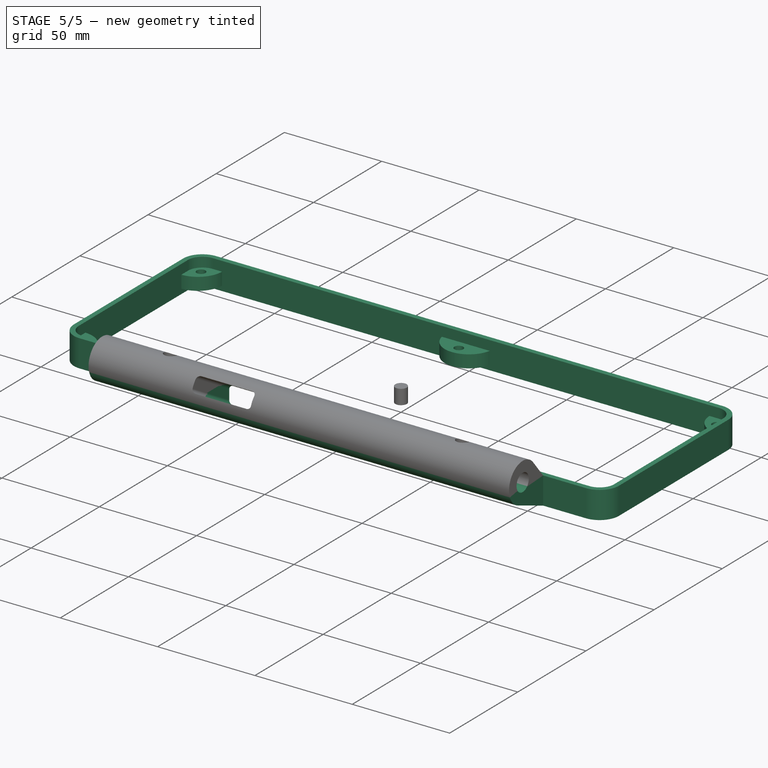
[diagram: stage 5 of 5 — iso view after this stage's code; geometry added in this stage tinted green]
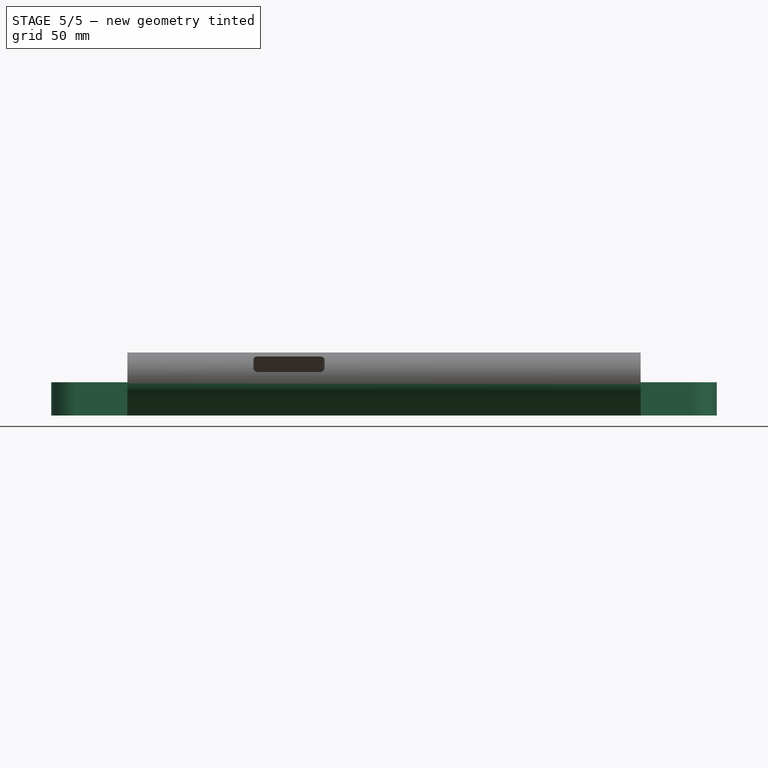
[diagram: stage 5 of 5 — front view after this stage's code; geometry added in this stage tinted green]
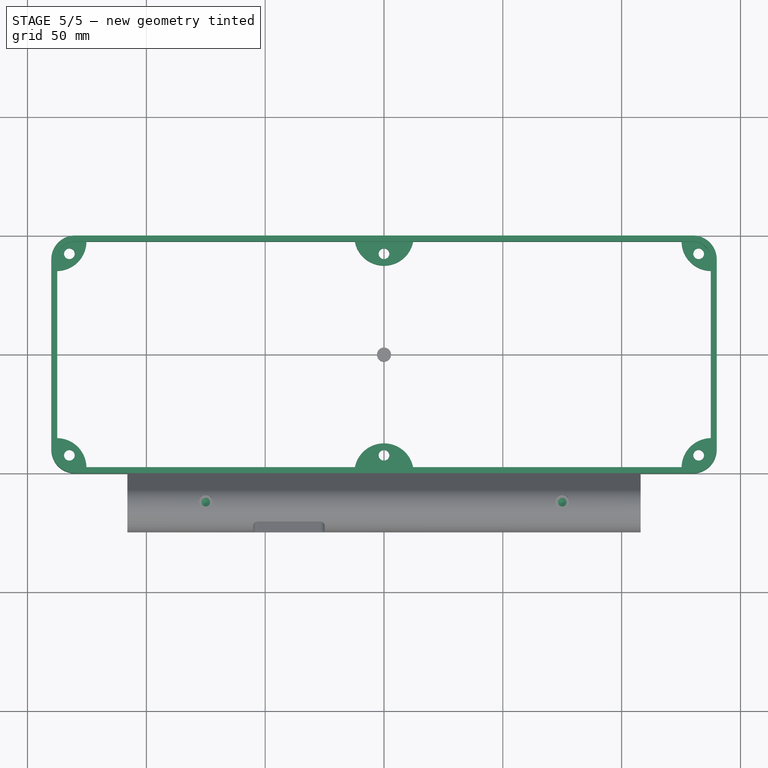
[diagram: stage 5 of 5 — top view after this stage's code; geometry added in this stage tinted green]
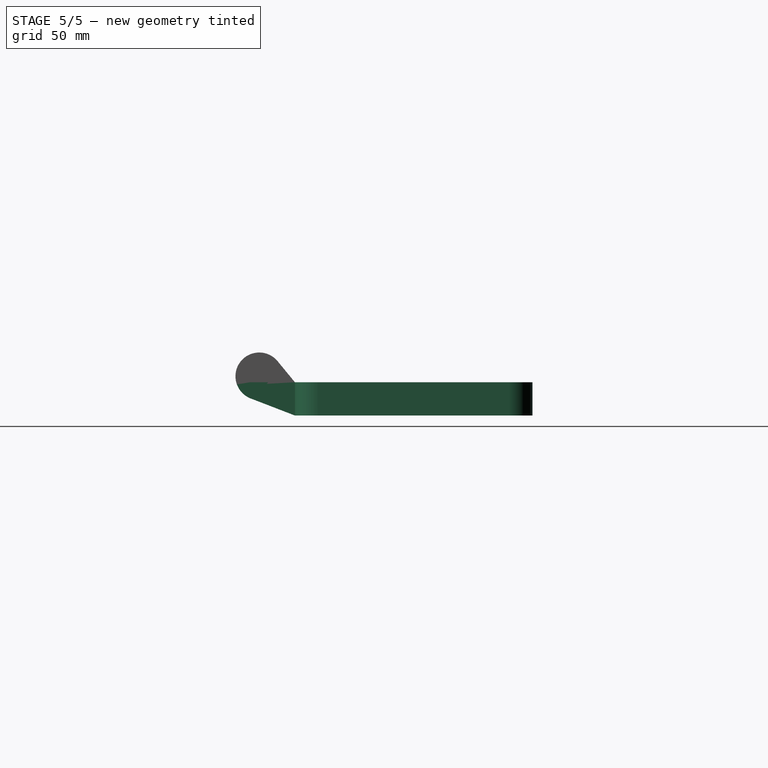
[diagram: stage 5 of 5 — right view after this stage's code; geometry added in this stage tinted green]
FEATURE [App::DocumentObjectGroup] GrExplode_Slice  label="Exploded Slice"
  Group = -> [Slice_child0,Slice_child1]
FEATURE [PartDesign::SubShapeBinder] Binder011
  BindCopyOnChange = 0
  BindMode = 0
  ClaimChildren = false
  Context = -> Body004 [Binder011.]
  Fuse = false
  MakeFace = true
  OffsetFill = false
  OffsetIntersection = false
  OffsetJoinType = 0
  OffsetOpenResult = false
  PartialLoad = false
  Refine = true
  Relative = true
  Support = -> [Slice_child0]
  _Version = 2
FEATURE [PartDesign::Boolean] Boolean003
  Group = -> [Binder011]
  Refine = true
  Suppressed = false
  Type = 0
  UsePlacement = true
FEATURE [PartDesign::SubShapeBinder] Binder013
  BindCopyOnChange = 0
  BindMode = 0
  ClaimChildren = false
  Context = -> Body006 [Binder013.]
  Fuse = false
  MakeFace = true
  OffsetFill = false
  OffsetIntersection = false
  OffsetJoinType = 0
  OffsetOpenResult = false
  PartialLoad = false
  Refine = true
  Relative = true
  Support = -> [Slice_child0[Face27]]
  _Version = 2
FEATURE [Sketcher::SketchObject] Sketch006
  ArcFitTolerance = 1e-06
  AttachmentSupport = -> [Binder013]
  ExternalGeometry = -> [Binder013]
  FullyConstrained = true
  MakeInternals = false
  MapMode = 5
  Placement = pos=(0,0,14) rot=(0,0,1;0rad)
  sketch-geometry (2):
    g0: Circle CenterX=-75 CenterY=-62.3412 CenterZ=0 NormalX=0 NormalY=0 NormalZ=1 AngleXU=0 Radius=1.5
    g1: LineSegment [constr] StartX=-75 StartY=-50 StartZ=0 EndX=-75 EndY=-74.6825 EndZ=0
  constraints (6):
    c: Diameter(g0) = 3
    c: PointOnObject(g1,g-5)
    c: PointOnObject(g1,g-6)
    c: Vertical(g1)
    c: Symmetric(g1,g1,g0)
    c: DistanceX(g-3,g1) = 15
FEATURE [PartDesign::SubShapeBinder] Binder014
  BindCopyOnChange = 0
  BindMode = 0
  ClaimChildren = false
  Context = -> Body004 [Binder014.]
  Fuse = false
  MakeFace = true
  OffsetFill = false
  OffsetIntersection = false
  OffsetJoinType = 0
  OffsetOpenResult = false
  PartialLoad = false
  Refine = true
  Relative = true
  Support = -> [Body006[Sketch006.]]
  _Version = 2
FEATURE [PartDesign::Hole] Hole002
  BaseFeature = -> Boolean003
  CustomThreadClearance = 0
  Depth = 6
  DepthType = 0
  Diameter = 4.5
  DrillForDepth = false
  DrillPoint = 1
  DrillPointAngle = 118
  HoleCutCountersinkAngle = 90
  HoleCutCustomValues = false
  HoleCutDepth = 0
  HoleCutDiameter = 6.1
  HoleCutType = 0
  ModelThread = false
  Profile = -> Binder014
  Refine = true
  Suppressed = false
  Tapered = false
  TaperedAngle = 90
  ThreadClass = 0
  ThreadDepth = 6
  ThreadDepthType = 0
  ThreadDirection = 0
  ThreadFit = 0
  ThreadSize = 0
  ThreadType = 0
  Threaded = false
  UseCustomThreadClearance = false
  expr: Diameter = <<Vars>>.nut_inserts_m3
FEATURE [PartDesign::Mirrored] Mirrored004
  BaseFeature = -> Hole002
  MirrorPlane = -> YZ_Plane004
  Originals = -> [Hole002]
  Refine = true
  Suppressed = false
  TransformMode = 0
FEATURE [Sketcher::SketchObject] Sketch007
  ArcFitTolerance = 1e-06
  AttachmentSupport = -> [Binder013]
  ExternalGeometry = -> [Binder013]
  FullyConstrained = true
  MakeInternals = false
  MapMode = 5
  Placement = pos=(0,0,14) rot=(0,0,1;0rad)
  sketch-geometry (2):
    g0: Circle CenterX=-63 CenterY=-62.3412 CenterZ=0 NormalX=0 NormalY=0 NormalZ=1 AngleXU=0 Radius=3
    g1: LineSegment [constr] StartX=-63 StartY=-50 StartZ=0 EndX=-63 EndY=-74.6825 EndZ=0
  constraints (6):
    c: PointOnObject(g1,g-5)
    c: PointOnObject(g1,g-6)
    c: Vertical(g1)
    c: Symmetric(g1,g1,g0)
    c: DistanceX(g1,g-3) = 8
    c: Diameter(g0) = 6
FEATURE [PartDesign::Body] Body006  label="Top Enclosure Shell Hindge Helper"
  AllowCompound = false
  Group = -> [Binder013,Sketch006,Sketch007]
  Origin = -> Origin006
FEATURE [PartDesign::SubShapeBinder] Binder017
  BindCopyOnChange = 0
  BindMode = 0
  ClaimChildren = false
  Context = -> Body004 [Binder017.]
  Fuse = false
  MakeFace = true
  OffsetFill = false
  OffsetIntersection = false
  OffsetJoinType = 0
  OffsetOpenResult = false
  PartialLoad = false
  Refine = true
  Relative = true
  Support = -> [Body006[Sketch007.]]
  _Version = 2
FEATURE [PartDesign::Pocket] Pocket004
  BaseFeature = -> Mirrored004
  Direction = (0,0,-1)
  Length = 4
  Length2 = 5
  Profile = -> Binder017
  Refine = true
  Suppressed = false
  Type = 0
FEATURE [PartDesign::Mirrored] Mirrored006
  BaseFeature = -> Pocket004
  MirrorPlane = -> YZ_Plane004
  Originals = -> [Pocket004]
  Refine = true
  Suppressed = false
  TransformMode = 0
FEATURE [PartDesign::Mirrored] Mirrored007
  BaseFeature = -> Pocket005
  MirrorPlane = -> YZ_Plane005
  Originals = -> [Pocket005]
  Refine = true
  Suppressed = false
  TransformMode = 0
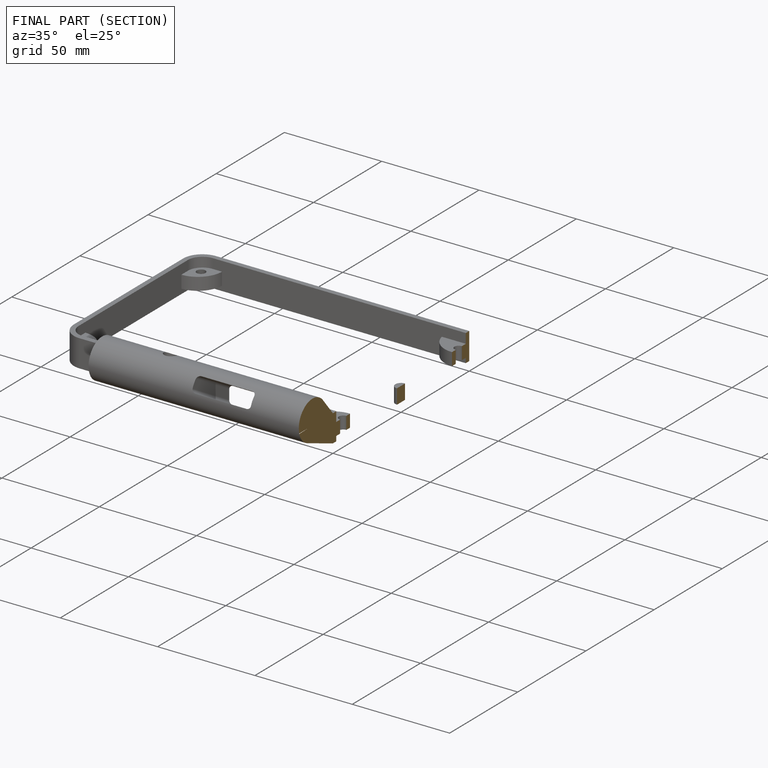
[diagram: finished part — half-section view (interior)]
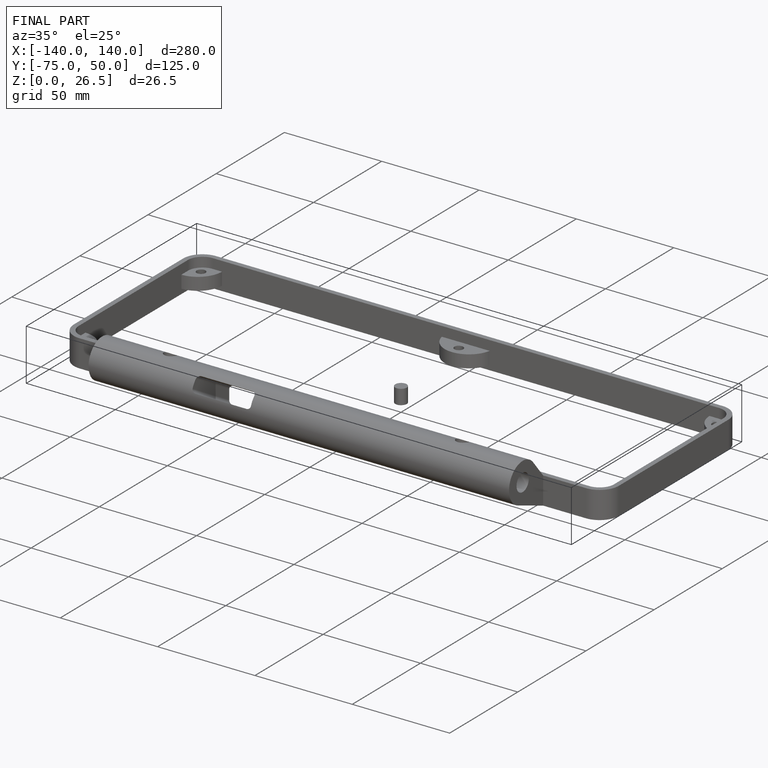
[diagram: finished part — iso view with bounding-box wireframe]
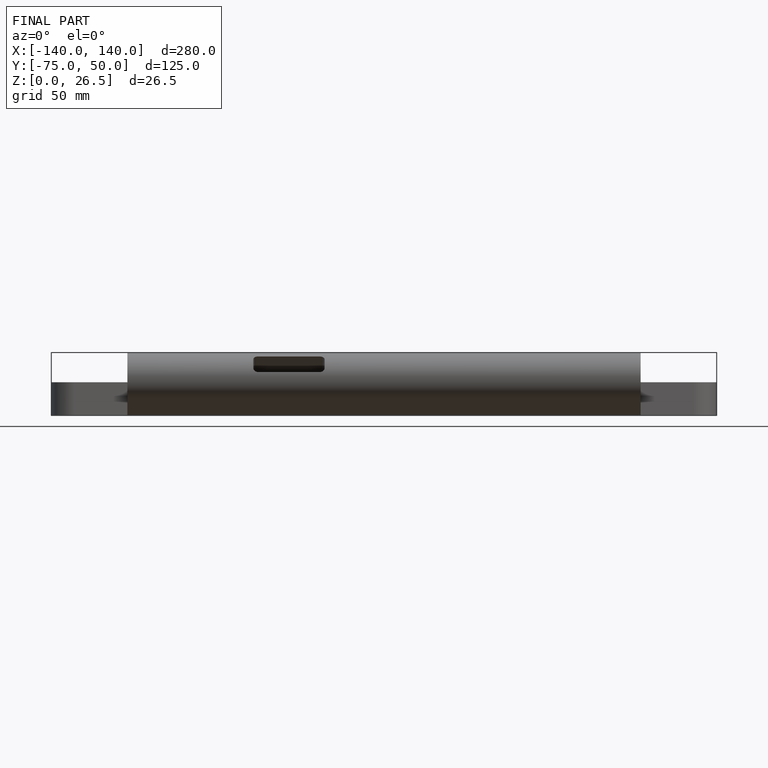
[diagram: finished part — front view with bounding-box wireframe]
